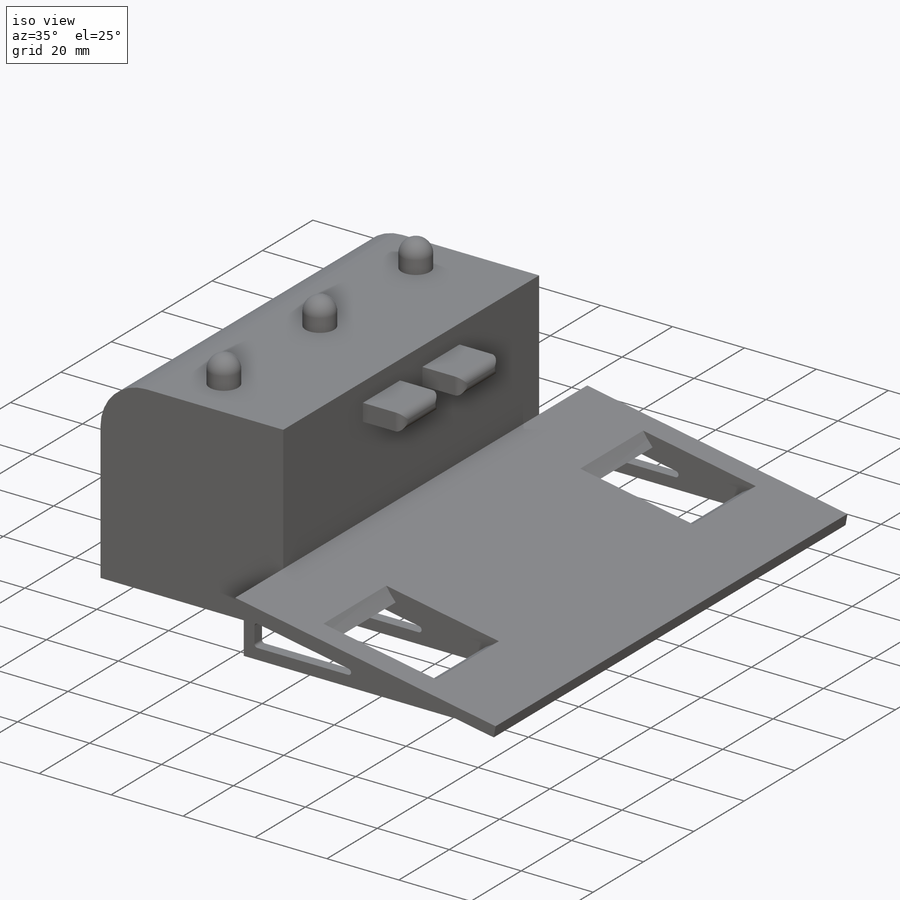
[diagram: iso view]
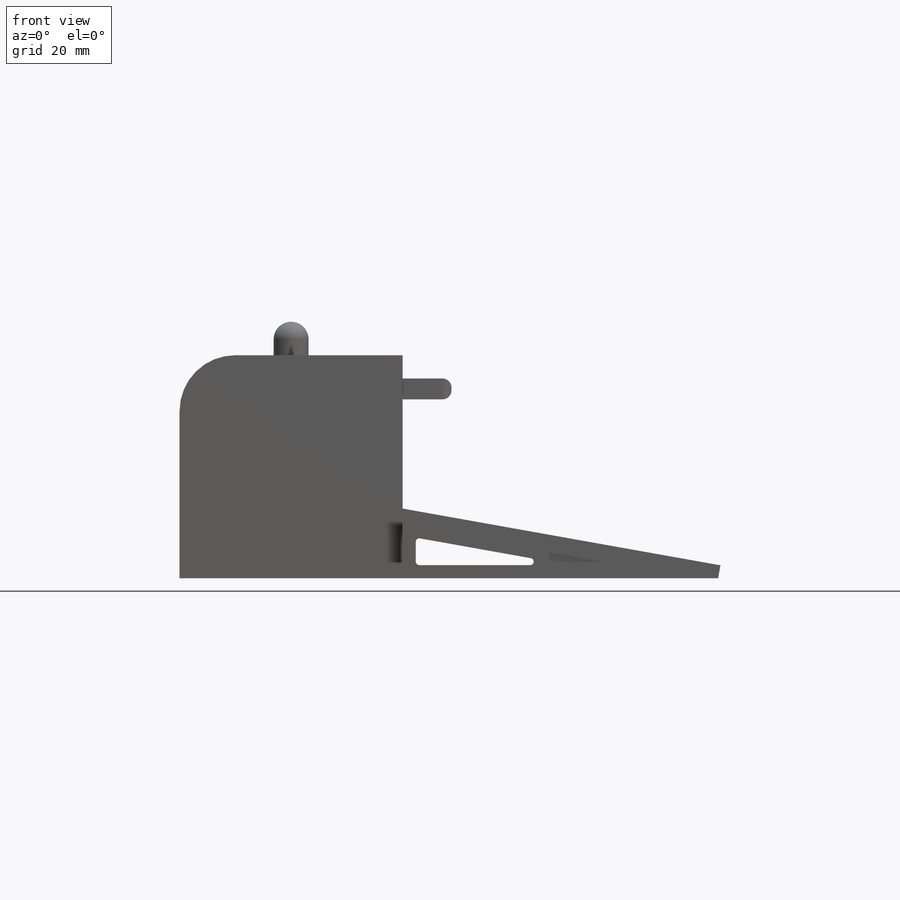
[diagram: front view]
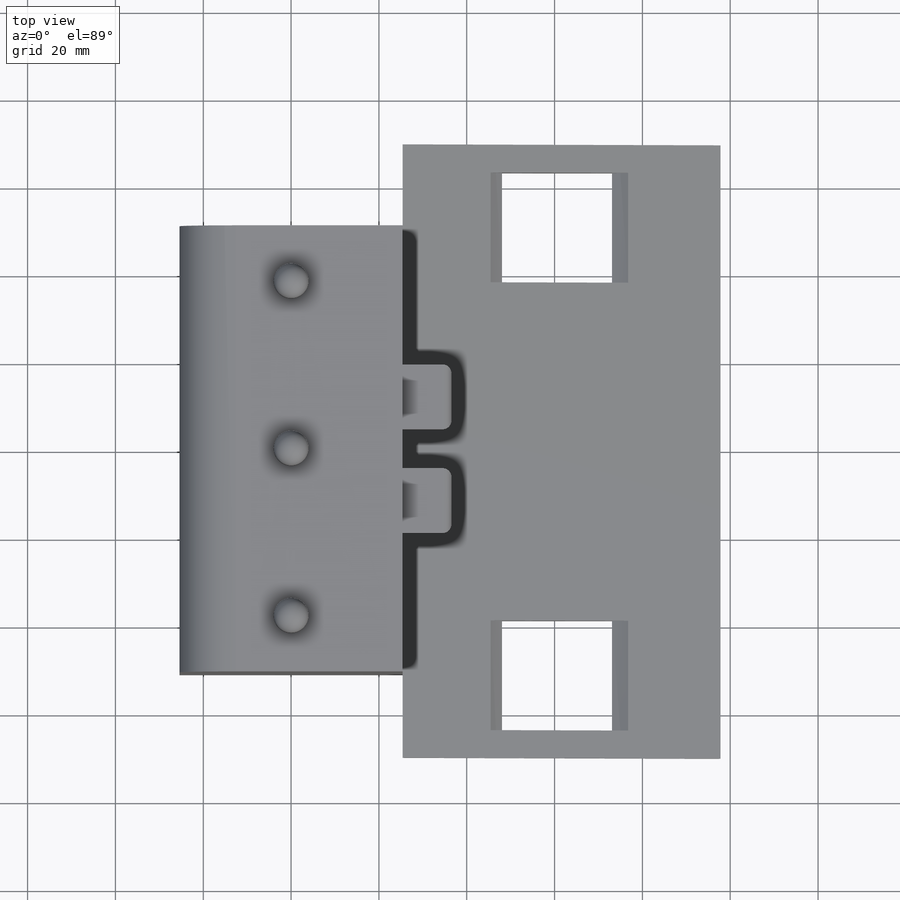
[diagram: top view]
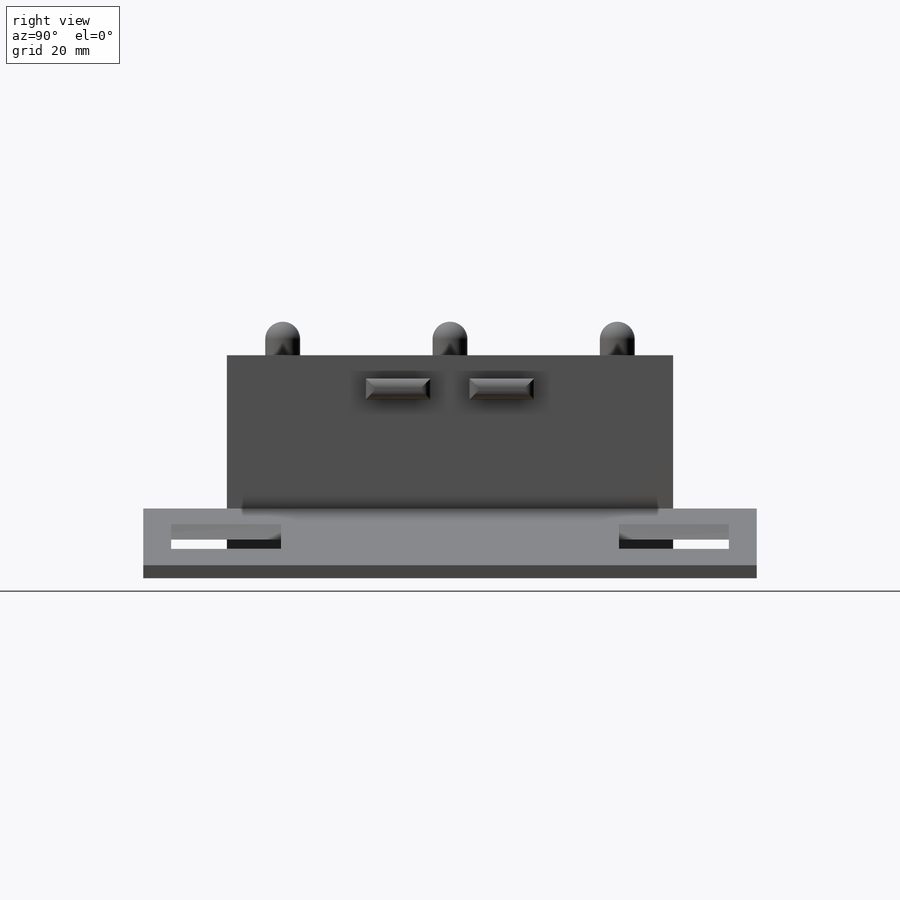
[diagram: right view]
SOLIDWORKS PART (.sldprt)
format: sldprt  version: not decoded by parser v0  size: 428,544 bytes
history: native  units: mm
features: sketch x8, extrude x6, fillet x5, cut_extrude x2, mirror x2, material x1, shell x1, plane x1 (+14 scaffold rows collapsed)
feature tree (40):
  scaffold x14  (default folders/planes/origin — collapsed)
  material  "6061 Alloy"
  sketch  "Sketch1"  dims[D3=12.7mm D1=50.8mm D2=50.8mm]
  extrude  "Extrude1"  Depth=101.6mm
  shell  "Shell1"  Thickness=1.5875mm
  sketch  "Sketch2"  dims[c1.D1=3.048mm c1.D3=3.048mm c1.D2=38.1mm c2.D3=38.1mm]
  cut_extrude  "Extrude2"  [1 undecoded]
  sketch  "Sketch3"  dims[D1=88.9mm D2=15.875mm D3=2.9972mm]
  extrude  "Extrude3"  Depth=139.7mm
  plane  "Plane1"  Offset=63.5mm
  sketch  "Sketch4"  dims[c1.D2=42.0mm c1.D1=42.0mm c1.D3=42.0mm c2.D1=23.0mm c2.D3=38.1mm c3.D1=23.0mm]
  cut_extrude  "Extrude4"  Depth=25mm
  mirror  "Mirror1"
  sketch  "Sketch5"  dims[D1=14.732mm D2=8.89mm D3=4.7625mm D4=~37.791752mm]
  extrude  "Extrude5"  Depth=11.1125mm
  fillet  "Fillet3"  Radius=2.032mm
  fillet  "Fillet4"  Radius=2.032mm
  sketch  "Sketch6"  dims[D1=7.9375mm]
  extrude  "Extrude6"  Depth=7.62mm
  fillet  "Fillet5"  Radius=3.96875mm
  fillet  "Fillet6"  Radius=3.96875mm
  fillet  "Fillet7"  Radius=3.96875mm
  sketch  "Sketch7"  dims[D2=~0.79375mm D3=~0.79375mm D1=2.9972mm]
  extrude  "Extrude7"  Depth=2.9972mm
  sketch  "Sketch8"  dims[D1=0.0mm D2=0.0mm D3=0.0mm]
  extrude  "Extrude8"  Depth=2.9972mm
  mirror  "Mirror2"
decode coverage: 21 of 24 modeling features carry decoded parameters
note: ~ marks probable driven/reference dimensions
note: 1 parameter value undecoded
note: suppression state not decoded; provenance and decode notes live in map.json
